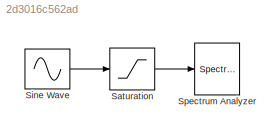
MODEL slx_2d3016c562ad
KIND model
BLOCK [Saturate] Saturation
  InputPortMap = u0
  LowerLimit = 0
  Ports = [1, 1]
  UpperLimit = 2
BLOCK [Sin] Sine Wave
  Frequency = 1000*2*pi
  Ports = [0, 1]
  SampleTime = 9.765625e-7
  Samples = 1024
BLOCK [SpectrumAnalyzer] Spectrum Analyzer
  Ports = [1]
LINE Saturation:1 -> Spectrum Analyzer:1
LINE Sine Wave:1 -> Saturation:1
